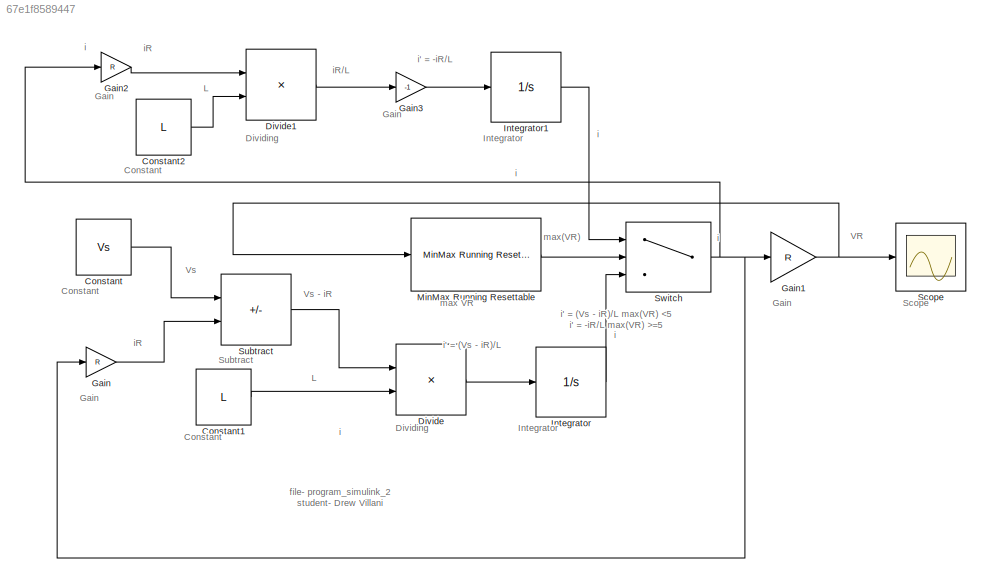
MODEL slx_67e1f8589447
KIND model
CONFIG AbsTol = auto
CONFIG EnableMultiTasking = off
CONFIG FixedStep = auto
CONFIG MaxStep = 0.001
CONFIG MinStep = auto
CONFIG RelTol = 1e-3
CONFIG SampleTimeConstraint = Unconstrained
CONFIG SolverName = VariableStepAuto
CONFIG StartTime = 0.0
CONFIG StopTime = 2
BLOCK [Constant] Constant
  Value = Vs
BLOCK [Constant] Constant1
  Value = L
BLOCK [Constant] Constant2
  Value = L
BLOCK [Product] Divide
  Inputs = */
BLOCK [Product] Divide1
  Inputs = */
BLOCK [Gain] Gain
  Gain = R
BLOCK [Gain] Gain1
  Gain = R
BLOCK [Gain] Gain2
  Gain = R
BLOCK [Gain] Gain3
  Gain = -1
BLOCK [Integrator] Integrator
BLOCK [Integrator] Integrator1
BLOCK [Reference] MinMax Running Resettable  REF=simulink/Math
Operations/MinMax
Running
Resettable
  SourceBlock = simulink/Math\nOperations/MinMax\nRunning\nResettable
  SourceType = MinMax Running Resettable
BLOCK [Scope] Scope
  Floating = off
  NumInputPorts = 1
  ScopeSpecificationString = Simulink.scopes.TimeScopeBlockCfg('CurrentConfiguration', extmgr.ConfigurationSet(extmgr.Configuration('Core','General UI',true),extmgr.Configuration('Core','Source UI',true),extmgr.Configuration('Sources','WiredSimulink',true),extmgr.Configuration('Visuals','Time Domain',true,'SerializedDisplays',{struct('MinYLimReal','-7.09438','MaxYLimReal','6.34382','YLabelReal','','MinYLimMag','0.00000','MaxY...<+1451ch>
BLOCK [Sum] Subtract
  IconShape = rectangular
  Inputs = +-
BLOCK [Switch] Switch
  InputSameDT = off
  SaturateOnIntegerOverflow = off
  Threshold = 5
ANNOTATION (root): file- program_simulink_2 student- Drew Villani
ANNOTATION (root): Constant
ANNOTATION (root): Dividing
ANNOTATION (root): Gain
ANNOTATION (root): Integrator
ANNOTATION (root): L
ANNOTATION (root): Scope
ANNOTATION (root): Subtract
ANNOTATION (root): VR
ANNOTATION (root): Vs
ANNOTATION (root): Vs - iR
ANNOTATION (root): i
ANNOTATION (root): i' = (Vs - iR)/L
ANNOTATION (root): i' = (Vs - iR)/L max(VR) =5
ANNOTATION (root): i' = -iR/L
ANNOTATION (root): iR
ANNOTATION (root): iR/L
ANNOTATION (root): max VR
ANNOTATION (root): max(VR)
LINE Constant1:1 -> Divide:2
LINE Constant2:1 -> Divide1:2
LINE Constant:1 -> Subtract:1
LINE Divide1:1 -> Gain3:1
LINE Divide:1 -> Integrator:1
NET Gain1:1 -> MinMax Running Resettable:1, Scope:1
LINE Gain2:1 -> Divide1:1
LINE Gain3:1 -> Integrator1:1
LINE Gain:1 -> Subtract:2
LINE Integrator1:1 -> Switch:1
LINE Integrator:1 -> Switch:3
LINE MinMax Running Resettable:1 -> Switch:2
LINE Subtract:1 -> Divide:1
NET Switch:1 -> Gain1:1, Gain2:1, Gain:1
note: NET lines group one-source signal fan-out (src -> all destinations, sorted); 1:1 wires keep LINE
